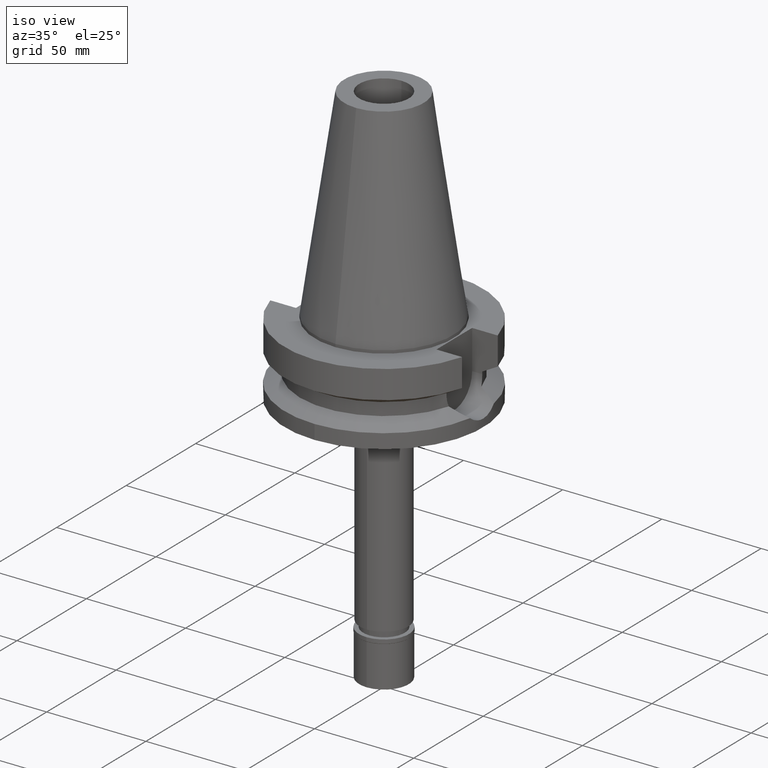
[diagram: clean part render]
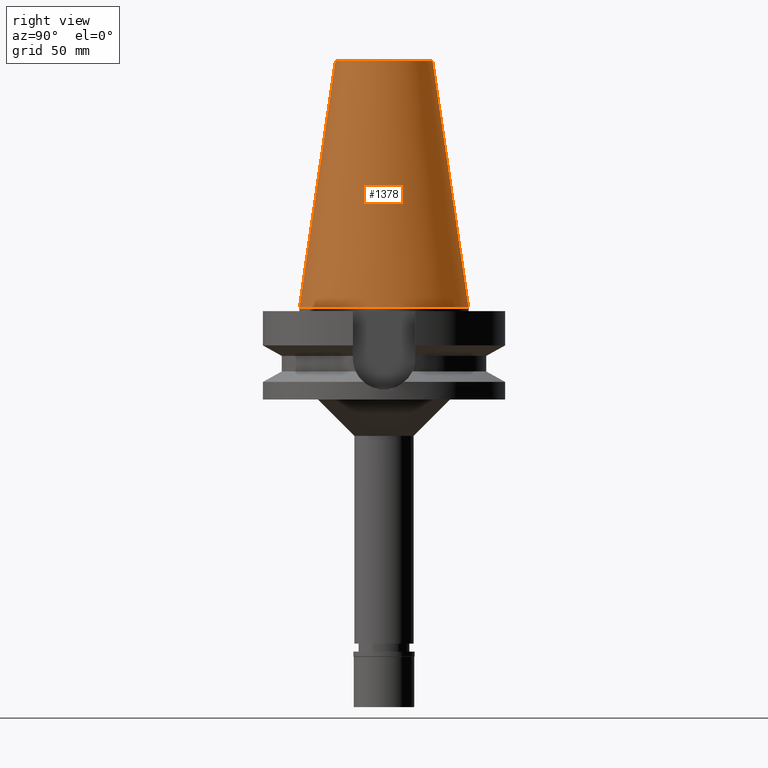
[diagram: tour spotlight — one face highlighted and labeled with its STEP entity id]
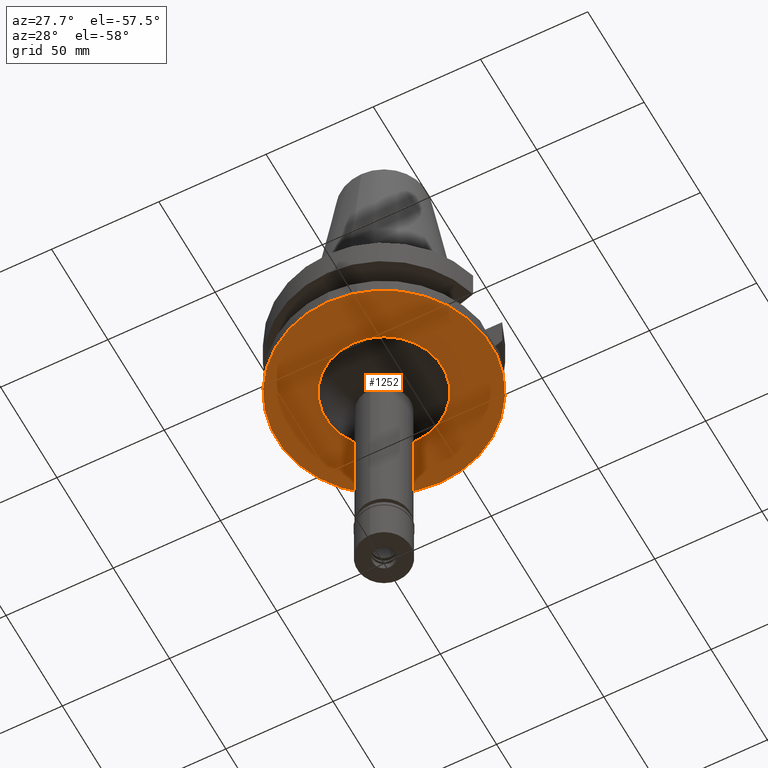
[diagram: tour spotlight — one face highlighted and labeled with its STEP entity id]
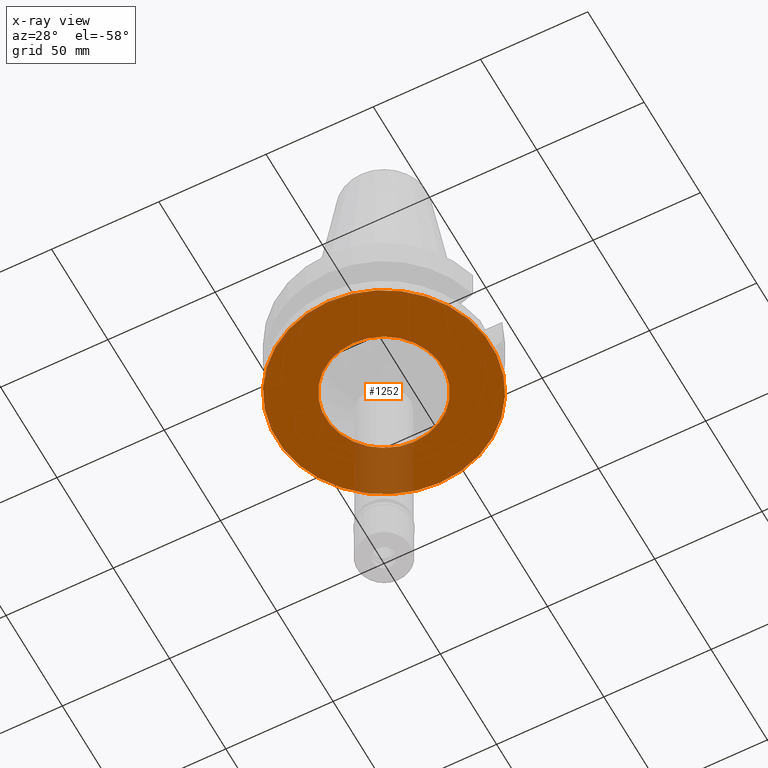
[diagram: x-ray of the same camera — body ghosted, this tour face saturated]
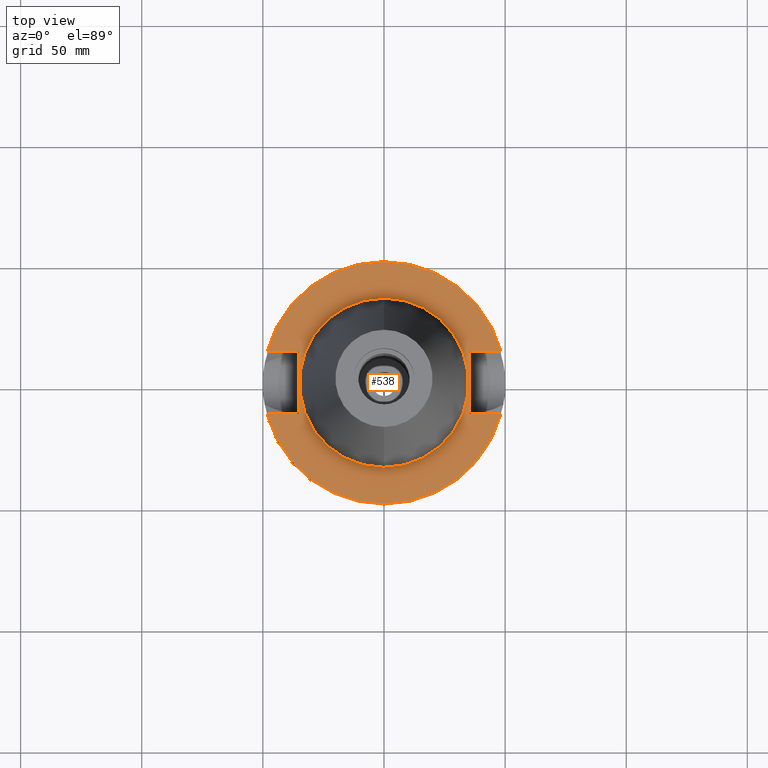
[diagram: tour spotlight — one face highlighted and labeled with its STEP entity id]
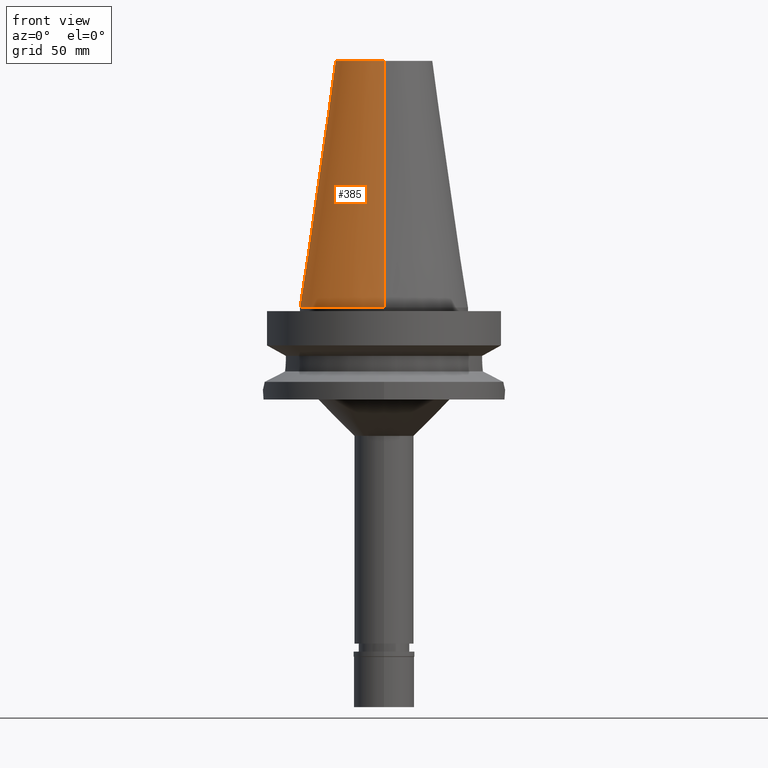
[diagram: tour spotlight — one face highlighted and labeled with its STEP entity id]
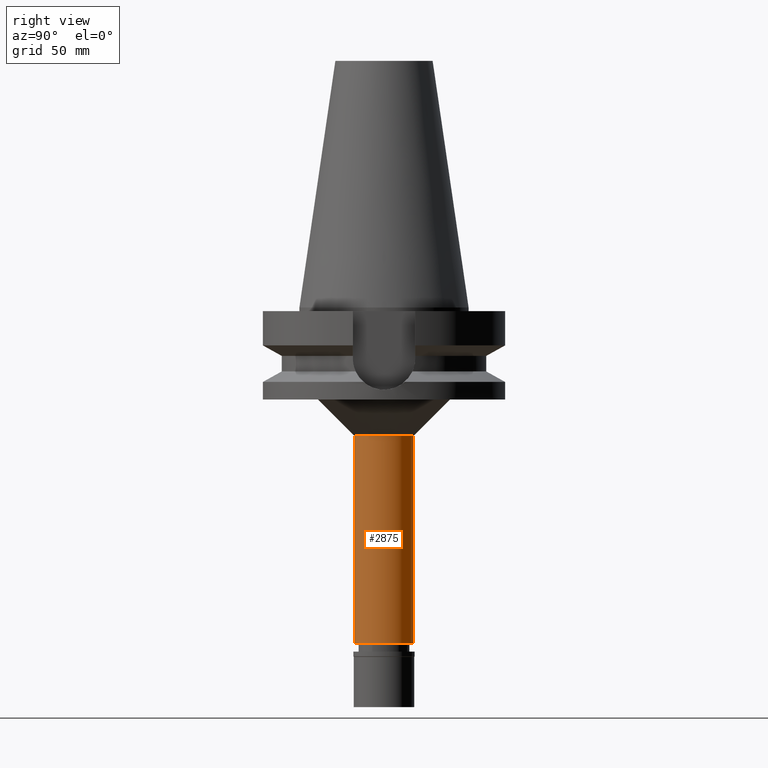
[diagram: tour spotlight — one face highlighted and labeled with its STEP entity id]
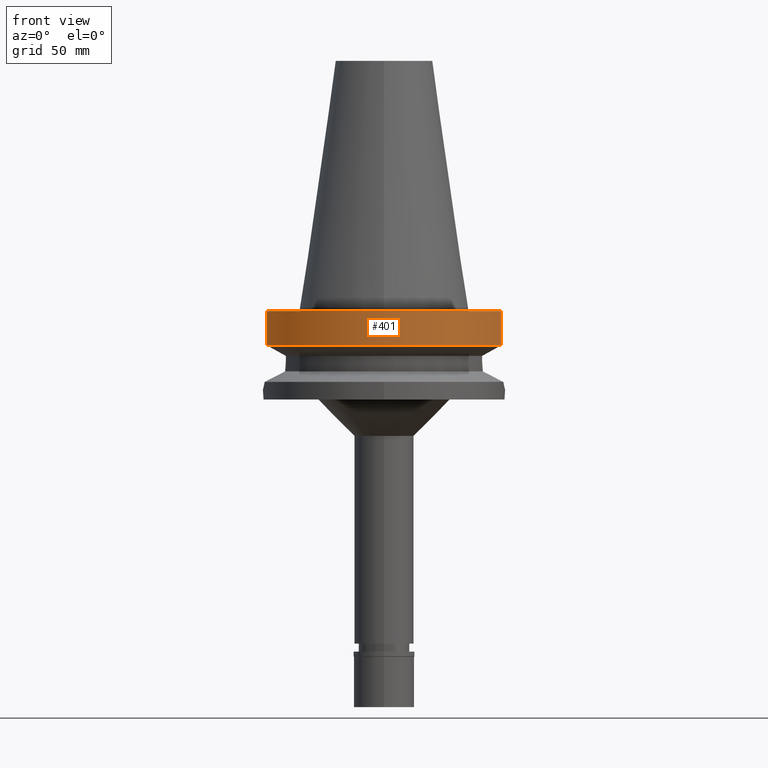
[diagram: tour spotlight — one face highlighted and labeled with its STEP entity id]
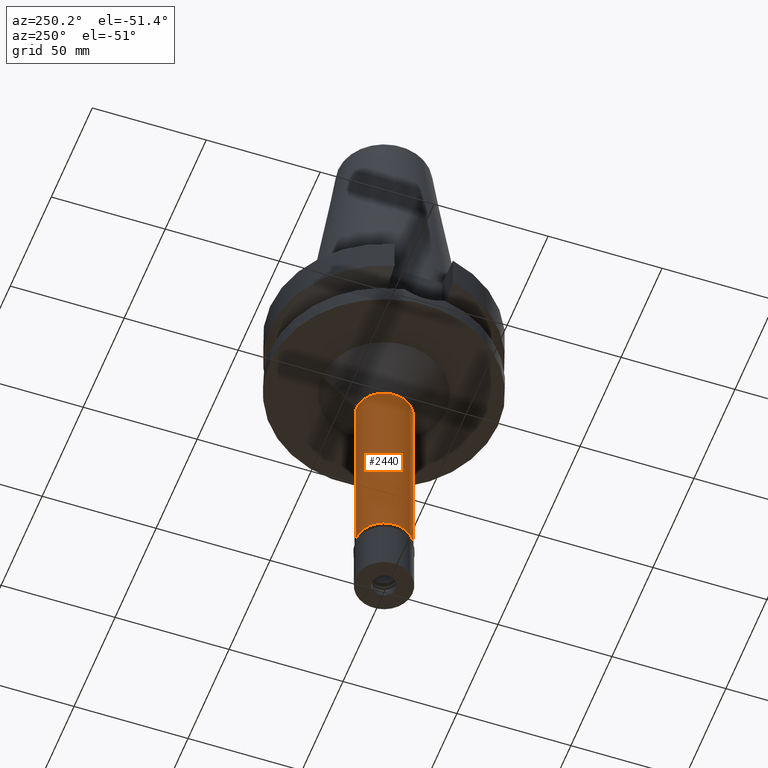
[diagram: tour spotlight — one face highlighted and labeled with its STEP entity id]
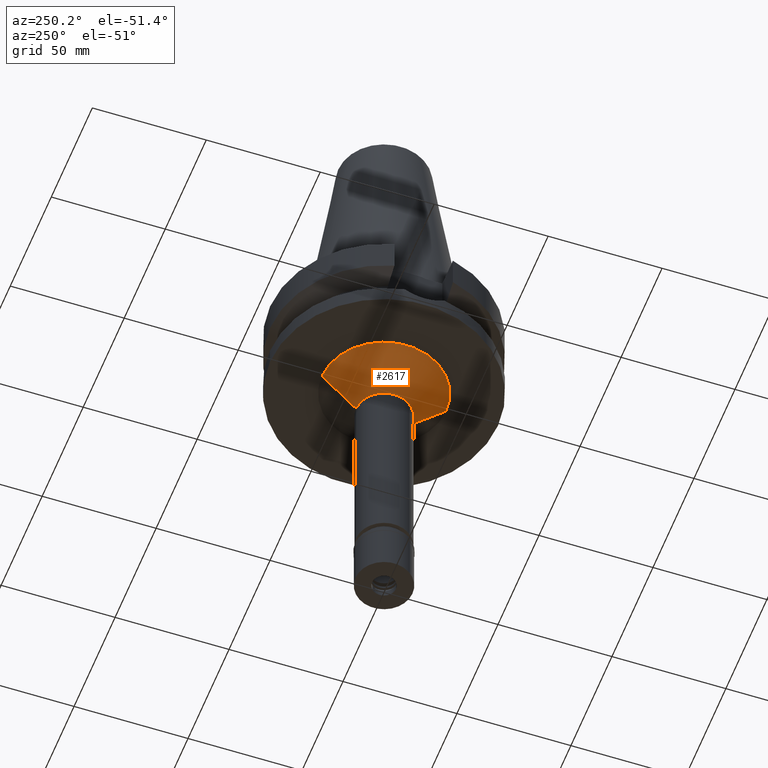
[diagram: tour spotlight — one face highlighted and labeled with its STEP entity id]
A machine part: a face-by-face anatomy tour. The part has 79 B-rep faces; the first image is the clean iso view, then the 8 largest visible faces are spotlighted one at a time (largest first), each with its STEP entity span.

Face 1 — right view, entity #1378. In plain terms, the highlighted conical surface has half-angle 8.297 deg.
Definition (entity closure, byte-faithful):
#58 = VECTOR ( 'NONE', #2322, 1000.000000000000114 ) ;
#188 = ORIENTED_EDGE ( 'NONE', *, *, #452, .F. ) ;
#242 = ORIENTED_EDGE ( 'NONE', *, *, #1646, .T. ) ;
#265 = ORIENTED_EDGE ( 'NONE', *, *, #347, .F. ) ;
#315 = CIRCLE ( 'NONE', #974, 20.07942971896000017 ) ;
#347 = EDGE_CURVE ( 'NONE', #2741, #1170, #1951, .T. ) ;
#452 = EDGE_CURVE ( 'NONE', #2927, #2741, #2982, .T. ) ;
#563 = CARTESIAN_POINT ( 'NONE',  ( 0.0000000000000000000, 1.847992019912999597E-14, 101.7999999999999972 ) ) ;
#568 = DIRECTION ( 'NONE',  ( 0.0000000000000000000, 0.1443043893538948075, -0.9895333461855641000 ) ) ;
#624 = EDGE_CURVE ( 'NONE', #2385, #1170, #2304, .T. ) ;
#653 = CARTESIAN_POINT ( 'NONE',  ( 0.0000000000000000000, 1.847992019912999597E-14, 3.979039320256999774E-13 ) ) ;
#876 = CARTESIAN_POINT ( 'NONE',  ( 0.0000000000000000000, 1.847992019912999597E-14, 50.89999999999999858 ) ) ;
#915 = DIRECTION ( 'NONE',  ( 0.0000000000000000000, 0.0000000000000000000, -1.000000000000000000 ) ) ;
#974 = AXIS2_PLACEMENT_3D ( 'NONE', #563, #2043, #1056 ) ;
#1056 = DIRECTION ( 'NONE',  ( 0.0000000000000000000, 1.000000000000000000, 0.0000000000000000000 ) ) ;
#1079 = CARTESIAN_POINT ( 'NONE',  ( 0.0000000000000000000, 20.07942971896000017, 101.7999999999999972 ) ) ;
#1170 = VERTEX_POINT ( 'NONE', #2719 ) ;
#1294 = CARTESIAN_POINT ( 'NONE',  ( 0.0000000000000000000, -20.07942971896000017, 101.7999999999999972 ) ) ;
#1378 = ADVANCED_FACE ( 'NONE', ( #2822 ), #1835, .T. ) ;
#1431 = VECTOR ( 'NONE', #568, 1000.000000000000114 ) ;
#1646 = EDGE_CURVE ( 'NONE', #2927, #2385, #315, .T. ) ;
#1700 = CARTESIAN_POINT ( 'NONE',  ( 0.0000000000000000000, 34.92499999999999716, 4.547473508865000658E-13 ) ) ;
#1835 = CONICAL_SURFACE ( 'NONE', #2550, 27.50221485948000222, 0.1448099680379422438 ) ;
#1951 = CIRCLE ( 'NONE', #2757, 34.92499999999999716 ) ;
#2037 = DIRECTION ( 'NONE',  ( 0.0000000000000000000, 1.000000000000000000, 0.0000000000000000000 ) ) ;
#2043 = DIRECTION ( 'NONE',  ( 0.0000000000000000000, 0.0000000000000000000, -1.000000000000000000 ) ) ;
#2083 = DIRECTION ( 'NONE',  ( 0.0000000000000000000, -1.000000000000000000, 0.0000000000000000000 ) ) ;
#2148 = CARTESIAN_POINT ( 'NONE',  ( 0.0000000000000000000, 20.07942971896000017, 101.7999999999999972 ) ) ;
#2247 = EDGE_LOOP ( 'NONE', ( #242, #2595, #265, #188 ) ) ;
#2283 = DIRECTION ( 'NONE',  ( 0.0000000000000000000, 0.0000000000000000000, -1.000000000000000000 ) ) ;
#2304 = LINE ( 'NONE', #3011, #58 ) ;
#2322 = DIRECTION ( 'NONE',  ( 0.0000000000000000000, -0.1443043893538948075, -0.9895333461855641000 ) ) ;
#2385 = VERTEX_POINT ( 'NONE', #1294 ) ;
#2550 = AXIS2_PLACEMENT_3D ( 'NONE', #876, #915, #2083 ) ;
#2595 = ORIENTED_EDGE ( 'NONE', *, *, #624, .T. ) ;
#2719 = CARTESIAN_POINT ( 'NONE',  ( 0.0000000000000000000, -34.92499999999999716, 4.547473508865000658E-13 ) ) ;
#2741 = VERTEX_POINT ( 'NONE', #1700 ) ;
#2757 = AXIS2_PLACEMENT_3D ( 'NONE', #653, #2283, #2037 ) ;
#2822 = FACE_OUTER_BOUND ( 'NONE', #2247, .T. ) ;
#2927 = VERTEX_POINT ( 'NONE', #2148 ) ;
#2982 = LINE ( 'NONE', #1079, #1431 ) ;
#3011 = CARTESIAN_POINT ( 'NONE',  ( 0.0000000000000000000, -20.07942971896000017, 101.7999999999999972 ) ) ;

Face 2 — auxiliary view, entity #1252. An x-ray twin of the same camera follows (body ghosted, this face saturated) — the face is partly hidden behind the body. In plain terms, the highlighted planar face has unit normal (0, 0, -1).
Definition (entity closure, byte-faithful):
#167 = CARTESIAN_POINT ( 'NONE',  ( 0.0000000000000000000, 0.0000000000000000000, -38.00000000000000000 ) ) ;
#232 = EDGE_LOOP ( 'NONE', ( #1890, #366 ) ) ;
#286 = FACE_OUTER_BOUND ( 'NONE', #232, .T. ) ;
#321 = EDGE_CURVE ( 'NONE', #2745, #1904, #2240, .T. ) ;
#366 = ORIENTED_EDGE ( 'NONE', *, *, #321, .F. ) ;
#410 = DIRECTION ( 'NONE',  ( 0.0000000000000000000, 0.0000000000000000000, 1.000000000000000000 ) ) ;
#449 = VERTEX_POINT ( 'NONE', #2792 ) ;
#476 = CARTESIAN_POINT ( 'NONE',  ( 0.0000000000000000000, 0.0000000000000000000, -38.00000000000000000 ) ) ;
#560 = ORIENTED_EDGE ( 'NONE', *, *, #1336, .F. ) ;
#632 = CARTESIAN_POINT ( 'NONE',  ( 0.0000000000000000000, 0.0000000000000000000, -38.00000000000000000 ) ) ;
#658 = EDGE_CURVE ( 'NONE', #1904, #2745, #1138, .T. ) ;
#938 = CARTESIAN_POINT ( 'NONE',  ( 0.0000000000000000000, -27.25000000000000000, -38.00000000000000000 ) ) ;
#1138 = CIRCLE ( 'NONE', #2700, 50.00000000000000000 ) ;
#1245 = CARTESIAN_POINT ( 'NONE',  ( 0.0000000000000000000, -50.00000000000000000, -38.00000000000000000 ) ) ;
#1252 = ADVANCED_FACE ( 'NONE', ( #286, #2237 ), #2975, .T. ) ;
#1293 = EDGE_CURVE ( 'NONE', #449, #1935, #3148, .T. ) ;
#1336 = EDGE_CURVE ( 'NONE', #1935, #449, #1466, .T. ) ;
#1421 = EDGE_LOOP ( 'NONE', ( #2544, #560 ) ) ;
#1466 = CIRCLE ( 'NONE', #1878, 27.25000000000000000 ) ;
#1698 = DIRECTION ( 'NONE',  ( 0.0000000000000000000, 0.0000000000000000000, -1.000000000000000000 ) ) ;
#1852 = DIRECTION ( 'NONE',  ( 0.0000000000000000000, 0.0000000000000000000, -1.000000000000000000 ) ) ;
#1878 = AXIS2_PLACEMENT_3D ( 'NONE', #632, #1852, #2846 ) ;
#1879 = DIRECTION ( 'NONE',  ( 0.0000000000000000000, 0.0000000000000000000, -1.000000000000000000 ) ) ;
#1890 = ORIENTED_EDGE ( 'NONE', *, *, #658, .F. ) ;
#1904 = VERTEX_POINT ( 'NONE', #2591 ) ;
#1935 = VERTEX_POINT ( 'NONE', #938 ) ;
#2136 = AXIS2_PLACEMENT_3D ( 'NONE', #167, #1879, #2804 ) ;
#2237 = FACE_BOUND ( 'NONE', #1421, .T. ) ;
#2240 = CIRCLE ( 'NONE', #3054, 50.00000000000000000 ) ;
#2501 = DIRECTION ( 'NONE',  ( 0.0000000000000000000, 1.000000000000000000, 0.0000000000000000000 ) ) ;
#2544 = ORIENTED_EDGE ( 'NONE', *, *, #1293, .F. ) ;
#2546 = AXIS2_PLACEMENT_3D ( 'NONE', #476, #1698, #2673 ) ;
#2591 = CARTESIAN_POINT ( 'NONE',  ( 0.0000000000000000000, 50.00000000000000000, -38.00000000000000000 ) ) ;
#2673 = DIRECTION ( 'NONE',  ( 0.0000000000000000000, -1.000000000000000000, 0.0000000000000000000 ) ) ;
#2700 = AXIS2_PLACEMENT_3D ( 'NONE', #2772, #3062, #2501 ) ;
#2745 = VERTEX_POINT ( 'NONE', #1245 ) ;
#2772 = CARTESIAN_POINT ( 'NONE',  ( 0.0000000000000000000, 2.629194213088999901E-14, -38.00000000000000000 ) ) ;
#2792 = CARTESIAN_POINT ( 'NONE',  ( 0.0000000000000000000, 27.25000000000000000, -38.00000000000000000 ) ) ;
#2804 = DIRECTION ( 'NONE',  ( 0.0000000000000000000, 1.000000000000000000, 0.0000000000000000000 ) ) ;
#2827 = DIRECTION ( 'NONE',  ( 0.0000000000000000000, -1.000000000000000000, 0.0000000000000000000 ) ) ;
#2846 = DIRECTION ( 'NONE',  ( 0.0000000000000000000, -1.000000000000000000, 0.0000000000000000000 ) ) ;
#2975 = PLANE ( 'NONE',  #2546 ) ;
#3054 = AXIS2_PLACEMENT_3D ( 'NONE', #3057, #410, #2827 ) ;
#3057 = CARTESIAN_POINT ( 'NONE',  ( 0.0000000000000000000, 2.629194213088999901E-14, -38.00000000000000000 ) ) ;
#3062 = DIRECTION ( 'NONE',  ( 0.0000000000000000000, 0.0000000000000000000, 1.000000000000000000 ) ) ;
#3148 = CIRCLE ( 'NONE', #2136, 27.25000000000000000 ) ;

Face 3 — top view, entity #538. In plain terms, the highlighted planar face has unit normal (0, 0, -1).
Definition (entity closure, byte-faithful):
#33 = ORIENTED_EDGE ( 'NONE', *, *, #2422, .F. ) ;
#50 = LINE ( 'NONE', #2688, #390 ) ;
#86 = AXIS2_PLACEMENT_3D ( 'NONE', #2590, #927, #225 ) ;
#101 = DIRECTION ( 'NONE',  ( 0.0000000000000000000, -1.000000000000000000, 0.0000000000000000000 ) ) ;
#119 = CARTESIAN_POINT ( 'NONE',  ( -35.39999999999999858, 12.84999999999999964, -1.500000000000000000 ) ) ;
#225 = DIRECTION ( 'NONE',  ( 0.0000000000000000000, 1.000000000000000000, 0.0000000000000000000 ) ) ;
#268 = CARTESIAN_POINT ( 'NONE',  ( 0.0000000000000000000, 2.629194213088999901E-14, -1.500000000000000000 ) ) ;
#279 = VECTOR ( 'NONE', #925, 1000.000000000000000 ) ;
#281 = VECTOR ( 'NONE', #942, 1000.000000000000000 ) ;
#325 = DIRECTION ( 'NONE',  ( 0.0000000000000000000, 0.0000000000000000000, -1.000000000000000000 ) ) ;
#352 = ORIENTED_EDGE ( 'NONE', *, *, #2945, .F. ) ;
#390 = VECTOR ( 'NONE', #2239, 1000.000000000000000 ) ;
#417 = DIRECTION ( 'NONE',  ( 0.0000000000000000000, 1.000000000000000000, 0.0000000000000000000 ) ) ;
#436 = DIRECTION ( 'NONE',  ( -1.000000000000000000, 0.0000000000000000000, 0.0000000000000000000 ) ) ;
#443 = ORIENTED_EDGE ( 'NONE', *, *, #3089, .F. ) ;
#520 = ORIENTED_EDGE ( 'NONE', *, *, #2146, .F. ) ;
#538 = ADVANCED_FACE ( 'NONE', ( #1773, #2509 ), #2760, .F. ) ;
#582 = CARTESIAN_POINT ( 'NONE',  ( 48.32057015392000210, -12.84999999999999964, -1.500000000000000000 ) ) ;
#662 = CARTESIAN_POINT ( 'NONE',  ( -35.39999999999999858, -12.84999999999999964, -1.500000000000000000 ) ) ;
#674 = CARTESIAN_POINT ( 'NONE',  ( -35.39999999999999858, -12.84999999999999964, -1.500000000000000000 ) ) ;
#747 = CIRCLE ( 'NONE', #86, 34.92499999999999716 ) ;
#784 = CIRCLE ( 'NONE', #2201, 34.92499999999999716 ) ;
#830 = CARTESIAN_POINT ( 'NONE',  ( 0.0000000000000000000, 1.206277097159999845E-14, -1.500000000000000000 ) ) ;
#886 = VERTEX_POINT ( 'NONE', #1874 ) ;
#890 = AXIS2_PLACEMENT_3D ( 'NONE', #1854, #1603, #2638 ) ;
#895 = CARTESIAN_POINT ( 'NONE',  ( 35.39999999999999858, 12.84999999999999964, -1.500000000000000000 ) ) ;
#914 = LINE ( 'NONE', #674, #2826 ) ;
#925 = DIRECTION ( 'NONE',  ( 1.000000000000000000, 0.0000000000000000000, 0.0000000000000000000 ) ) ;
#927 = DIRECTION ( 'NONE',  ( 0.0000000000000000000, 0.0000000000000000000, 1.000000000000000000 ) ) ;
#942 = DIRECTION ( 'NONE',  ( 1.000000000000000000, 0.0000000000000000000, 0.0000000000000000000 ) ) ;
#946 = ORIENTED_EDGE ( 'NONE', *, *, #2526, .F. ) ;
#951 = ORIENTED_EDGE ( 'NONE', *, *, #1928, .F. ) ;
#1106 = VERTEX_POINT ( 'NONE', #1941 ) ;
#1183 = CIRCLE ( 'NONE', #890, 50.00000000000000000 ) ;
#1240 = DIRECTION ( 'NONE',  ( 0.0000000000000000000, 0.0000000000000000000, 1.000000000000000000 ) ) ;
#1246 = CIRCLE ( 'NONE', #3033, 50.00000000000000000 ) ;
#1256 = DIRECTION ( 'NONE',  ( 0.0000000000000000000, 0.0000000000000000000, -1.000000000000000000 ) ) ;
#1310 = CARTESIAN_POINT ( 'NONE',  ( 35.39999999999999858, -12.84999999999999964, -1.500000000000000000 ) ) ;
#1531 = CARTESIAN_POINT ( 'NONE',  ( -35.39999999999999858, -12.84999999999999964, -1.500000000000000000 ) ) ;
#1564 = EDGE_LOOP ( 'NONE', ( #946, #520 ) ) ;
#1583 = CARTESIAN_POINT ( 'NONE',  ( 0.0000000000000000000, -34.92499999999999716, -1.500000000000000000 ) ) ;
#1603 = DIRECTION ( 'NONE',  ( 0.0000000000000000000, 0.0000000000000000000, -1.000000000000000000 ) ) ;
#1629 = DIRECTION ( 'NONE',  ( -1.000000000000000000, 0.0000000000000000000, 0.0000000000000000000 ) ) ;
#1636 = AXIS2_PLACEMENT_3D ( 'NONE', #830, #325, #2806 ) ;
#1650 = VERTEX_POINT ( 'NONE', #119 ) ;
#1672 = VERTEX_POINT ( 'NONE', #1531 ) ;
#1754 = VERTEX_POINT ( 'NONE', #582 ) ;
#1767 = CARTESIAN_POINT ( 'NONE',  ( -48.32057015392000210, -12.84999999999999964, -1.500000000000000000 ) ) ;
#1773 = FACE_OUTER_BOUND ( 'NONE', #2898, .T. ) ;
#1813 = VERTEX_POINT ( 'NONE', #1583 ) ;
#1854 = CARTESIAN_POINT ( 'NONE',  ( 0.0000000000000000000, 2.629194213088999901E-14, -1.500000000000000000 ) ) ;
#1874 = CARTESIAN_POINT ( 'NONE',  ( 0.0000000000000000000, 34.92499999999999716, -1.500000000000000000 ) ) ;
#1880 = CARTESIAN_POINT ( 'NONE',  ( 35.39999999999999858, -12.84999999999999964, -1.500000000000000000 ) ) ;
#1906 = LINE ( 'NONE', #2123, #279 ) ;
#1928 = EDGE_CURVE ( 'NONE', #1106, #2636, #1183, .T. ) ;
#1941 = CARTESIAN_POINT ( 'NONE',  ( -48.32057015392000210, 12.84999999999999964, -1.500000000000000000 ) ) ;
#1982 = ORIENTED_EDGE ( 'NONE', *, *, #2616, .T. ) ;
#2017 = VECTOR ( 'NONE', #1629, 1000.000000000000000 ) ;
#2025 = VERTEX_POINT ( 'NONE', #895 ) ;
#2041 = ORIENTED_EDGE ( 'NONE', *, *, #2460, .F. ) ;
#2047 = CARTESIAN_POINT ( 'NONE',  ( -35.39999999999999858, 12.84999999999999964, -1.500000000000000000 ) ) ;
#2111 = LINE ( 'NONE', #662, #2017 ) ;
#2121 = VECTOR ( 'NONE', #436, 1000.000000000000000 ) ;
#2123 = CARTESIAN_POINT ( 'NONE',  ( 35.39999999999999858, 12.84999999999999964, -1.500000000000000000 ) ) ;
#2146 = EDGE_CURVE ( 'NONE', #1813, #886, #784, .T. ) ;
#2201 = AXIS2_PLACEMENT_3D ( 'NONE', #268, #1240, #101 ) ;
#2239 = DIRECTION ( 'NONE',  ( 0.0000000000000000000, -1.000000000000000000, 0.0000000000000000000 ) ) ;
#2280 = VERTEX_POINT ( 'NONE', #1767 ) ;
#2411 = VERTEX_POINT ( 'NONE', #1310 ) ;
#2422 = EDGE_CURVE ( 'NONE', #1650, #1106, #2527, .T. ) ;
#2460 = EDGE_CURVE ( 'NONE', #2411, #1754, #2835, .T. ) ;
#2488 = CARTESIAN_POINT ( 'NONE',  ( 48.32057015392000210, 12.84999999999999964, -1.500000000000000000 ) ) ;
#2509 = FACE_BOUND ( 'NONE', #1564, .T. ) ;
#2526 = EDGE_CURVE ( 'NONE', #886, #1813, #747, .T. ) ;
#2527 = LINE ( 'NONE', #2047, #2121 ) ;
#2590 = CARTESIAN_POINT ( 'NONE',  ( 0.0000000000000000000, 2.629194213088999901E-14, -1.500000000000000000 ) ) ;
#2616 = EDGE_CURVE ( 'NONE', #1672, #2280, #2111, .T. ) ;
#2631 = EDGE_CURVE ( 'NONE', #2025, #2411, #50, .T. ) ;
#2636 = VERTEX_POINT ( 'NONE', #2488 ) ;
#2638 = DIRECTION ( 'NONE',  ( 0.0000000000000000000, 1.000000000000000000, 0.0000000000000000000 ) ) ;
#2670 = CARTESIAN_POINT ( 'NONE',  ( 0.0000000000000000000, 2.629194213088999901E-14, -1.500000000000000000 ) ) ;
#2688 = CARTESIAN_POINT ( 'NONE',  ( 35.39999999999999858, 12.84999999999999964, -1.500000000000000000 ) ) ;
#2760 = PLANE ( 'NONE',  #1636 ) ;
#2784 = ORIENTED_EDGE ( 'NONE', *, *, #2944, .T. ) ;
#2806 = DIRECTION ( 'NONE',  ( 0.0000000000000000000, -1.000000000000000000, 0.0000000000000000000 ) ) ;
#2826 = VECTOR ( 'NONE', #417, 1000.000000000000000 ) ;
#2835 = LINE ( 'NONE', #1880, #281 ) ;
#2898 = EDGE_LOOP ( 'NONE', ( #1982, #443, #2041, #2972, #2784, #951, #33, #352 ) ) ;
#2899 = DIRECTION ( 'NONE',  ( 0.0000000000000000000, -1.000000000000000000, 0.0000000000000000000 ) ) ;
#2944 = EDGE_CURVE ( 'NONE', #2025, #2636, #1906, .T. ) ;
#2945 = EDGE_CURVE ( 'NONE', #1672, #1650, #914, .T. ) ;
#2972 = ORIENTED_EDGE ( 'NONE', *, *, #2631, .F. ) ;
#3033 = AXIS2_PLACEMENT_3D ( 'NONE', #2670, #1256, #2899 ) ;
#3089 = EDGE_CURVE ( 'NONE', #1754, #2280, #1246, .T. ) ;

Face 4 — front view, entity #385. In plain terms, the highlighted conical surface has half-angle 8.297 deg.
Definition (entity closure, byte-faithful):
#58 = VECTOR ( 'NONE', #2322, 1000.000000000000114 ) ;
#89 = CARTESIAN_POINT ( 'NONE',  ( 0.0000000000000000000, 1.847992019912999597E-14, 3.979039320256999774E-13 ) ) ;
#298 = EDGE_CURVE ( 'NONE', #2385, #2927, #411, .T. ) ;
#349 = FACE_OUTER_BOUND ( 'NONE', #1049, .T. ) ;
#385 = ADVANCED_FACE ( 'NONE', ( #349 ), #1229, .T. ) ;
#411 = CIRCLE ( 'NONE', #668, 20.07942971896000017 ) ;
#452 = EDGE_CURVE ( 'NONE', #2927, #2741, #2982, .T. ) ;
#568 = DIRECTION ( 'NONE',  ( 0.0000000000000000000, 0.1443043893538948075, -0.9895333461855641000 ) ) ;
#624 = EDGE_CURVE ( 'NONE', #2385, #1170, #2304, .T. ) ;
#668 = AXIS2_PLACEMENT_3D ( 'NONE', #1066, #1829, #1605 ) ;
#1049 = EDGE_LOOP ( 'NONE', ( #1278, #2175, #2892, #2970 ) ) ;
#1060 = DIRECTION ( 'NONE',  ( 0.0000000000000000000, 0.0000000000000000000, -1.000000000000000000 ) ) ;
#1066 = CARTESIAN_POINT ( 'NONE',  ( 0.0000000000000000000, 1.847992019912999597E-14, 101.7999999999999972 ) ) ;
#1079 = CARTESIAN_POINT ( 'NONE',  ( 0.0000000000000000000, 20.07942971896000017, 101.7999999999999972 ) ) ;
#1084 = DIRECTION ( 'NONE',  ( 0.0000000000000000000, 0.0000000000000000000, -1.000000000000000000 ) ) ;
#1170 = VERTEX_POINT ( 'NONE', #2719 ) ;
#1229 = CONICAL_SURFACE ( 'NONE', #2605, 27.50221485948000222, 0.1448099680379422438 ) ;
#1278 = ORIENTED_EDGE ( 'NONE', *, *, #2400, .F. ) ;
#1294 = CARTESIAN_POINT ( 'NONE',  ( 0.0000000000000000000, -20.07942971896000017, 101.7999999999999972 ) ) ;
#1317 = CARTESIAN_POINT ( 'NONE',  ( 0.0000000000000000000, 1.847992019912999597E-14, 50.89999999999999858 ) ) ;
#1431 = VECTOR ( 'NONE', #568, 1000.000000000000114 ) ;
#1565 = CIRCLE ( 'NONE', #2473, 34.92499999999999716 ) ;
#1605 = DIRECTION ( 'NONE',  ( 0.0000000000000000000, -1.000000000000000000, 0.0000000000000000000 ) ) ;
#1700 = CARTESIAN_POINT ( 'NONE',  ( 0.0000000000000000000, 34.92499999999999716, 4.547473508865000658E-13 ) ) ;
#1791 = DIRECTION ( 'NONE',  ( 0.0000000000000000000, -1.000000000000000000, 0.0000000000000000000 ) ) ;
#1829 = DIRECTION ( 'NONE',  ( 0.0000000000000000000, 0.0000000000000000000, -1.000000000000000000 ) ) ;
#2054 = DIRECTION ( 'NONE',  ( 0.0000000000000000000, -1.000000000000000000, 0.0000000000000000000 ) ) ;
#2148 = CARTESIAN_POINT ( 'NONE',  ( 0.0000000000000000000, 20.07942971896000017, 101.7999999999999972 ) ) ;
#2175 = ORIENTED_EDGE ( 'NONE', *, *, #624, .F. ) ;
#2304 = LINE ( 'NONE', #3011, #58 ) ;
#2322 = DIRECTION ( 'NONE',  ( 0.0000000000000000000, -0.1443043893538948075, -0.9895333461855641000 ) ) ;
#2385 = VERTEX_POINT ( 'NONE', #1294 ) ;
#2400 = EDGE_CURVE ( 'NONE', #1170, #2741, #1565, .T. ) ;
#2473 = AXIS2_PLACEMENT_3D ( 'NONE', #89, #1060, #1791 ) ;
#2605 = AXIS2_PLACEMENT_3D ( 'NONE', #1317, #1084, #2054 ) ;
#2719 = CARTESIAN_POINT ( 'NONE',  ( 0.0000000000000000000, -34.92499999999999716, 4.547473508865000658E-13 ) ) ;
#2741 = VERTEX_POINT ( 'NONE', #1700 ) ;
#2892 = ORIENTED_EDGE ( 'NONE', *, *, #298, .T. ) ;
#2927 = VERTEX_POINT ( 'NONE', #2148 ) ;
#2970 = ORIENTED_EDGE ( 'NONE', *, *, #452, .T. ) ;
#2982 = LINE ( 'NONE', #1079, #1431 ) ;
#3011 = CARTESIAN_POINT ( 'NONE',  ( 0.0000000000000000000, -20.07942971896000017, 101.7999999999999972 ) ) ;

Face 5 — right view, entity #2875. In plain terms, the highlighted cylindrical surface (edge-blend (fillet) strip) has radius 12.25 mm, axis along (0, 0, -1).
Definition (entity closure, byte-faithful):
#27 = DIRECTION ( 'NONE',  ( 0.0000000000000000000, 0.0000000000000000000, -1.000000000000000000 ) ) ;
#77 = ORIENTED_EDGE ( 'NONE', *, *, #3101, .T. ) ;
#161 = VECTOR ( 'NONE', #1038, 1000.000000000000000 ) ;
#183 = DIRECTION ( 'NONE',  ( 0.0000000000000000000, -1.000000000000000000, 0.0000000000000000000 ) ) ;
#206 = CARTESIAN_POINT ( 'NONE',  ( 0.0000000000000000000, 12.25000000000000000, -53.00000000000000000 ) ) ;
#217 = DIRECTION ( 'NONE',  ( 0.0000000000000000000, 0.0000000000000000000, -1.000000000000000000 ) ) ;
#271 = CARTESIAN_POINT ( 'NONE',  ( 0.0000000000000000000, 12.25000000000000000, -53.00000000000000000 ) ) ;
#424 = AXIS2_PLACEMENT_3D ( 'NONE', #1207, #2177, #3118 ) ;
#556 = ORIENTED_EDGE ( 'NONE', *, *, #2116, .T. ) ;
#571 = ORIENTED_EDGE ( 'NONE', *, *, #837, .F. ) ;
#604 = CARTESIAN_POINT ( 'NONE',  ( 0.0000000000000000000, 12.25000000000000000, -138.8000000000000114 ) ) ;
#646 = DIRECTION ( 'NONE',  ( 0.0000000000000000000, 0.0000000000000000000, -1.000000000000000000 ) ) ;
#691 = CIRCLE ( 'NONE', #2470, 12.25000000000000000 ) ;
#702 = FACE_OUTER_BOUND ( 'NONE', #2159, .T. ) ;
#767 = VECTOR ( 'NONE', #217, 1000.000000000000000 ) ;
#837 = EDGE_CURVE ( 'NONE', #2618, #1972, #2386, .T. ) ;
#891 = CARTESIAN_POINT ( 'NONE',  ( 0.0000000000000000000, 2.629194213088999901E-14, 114.6899999999999977 ) ) ;
#1012 = VERTEX_POINT ( 'NONE', #1916 ) ;
#1038 = DIRECTION ( 'NONE',  ( 0.0000000000000000000, 0.0000000000000000000, -1.000000000000000000 ) ) ;
#1093 = CIRCLE ( 'NONE', #424, 12.25000000000000000 ) ;
#1207 = CARTESIAN_POINT ( 'NONE',  ( 0.0000000000000000000, 2.629194213088999901E-14, -138.8000000000000114 ) ) ;
#1214 = EDGE_CURVE ( 'NONE', #1012, #2249, #1272, .T. ) ;
#1272 = LINE ( 'NONE', #1711, #161 ) ;
#1471 = CARTESIAN_POINT ( 'NONE',  ( 0.0000000000000000000, 0.0000000000000000000, -53.00000000000000000 ) ) ;
#1701 = AXIS2_PLACEMENT_3D ( 'NONE', #891, #646, #183 ) ;
#1711 = CARTESIAN_POINT ( 'NONE',  ( 0.0000000000000000000, -12.25000000000000000, -53.00000000000000000 ) ) ;
#1864 = CYLINDRICAL_SURFACE ( 'NONE', #1701, 12.25000000000000000 ) ;
#1916 = CARTESIAN_POINT ( 'NONE',  ( 0.0000000000000000000, -12.25000000000000000, -53.00000000000000000 ) ) ;
#1972 = VERTEX_POINT ( 'NONE', #604 ) ;
#2116 = EDGE_CURVE ( 'NONE', #2249, #1972, #1093, .T. ) ;
#2159 = EDGE_LOOP ( 'NONE', ( #77, #3114, #556, #571 ) ) ;
#2177 = DIRECTION ( 'NONE',  ( 0.0000000000000000000, 0.0000000000000000000, 1.000000000000000000 ) ) ;
#2249 = VERTEX_POINT ( 'NONE', #2749 ) ;
#2386 = LINE ( 'NONE', #206, #767 ) ;
#2415 = DIRECTION ( 'NONE',  ( 0.0000000000000000000, 1.000000000000000000, 0.0000000000000000000 ) ) ;
#2470 = AXIS2_PLACEMENT_3D ( 'NONE', #1471, #27, #2415 ) ;
#2618 = VERTEX_POINT ( 'NONE', #271 ) ;
#2749 = CARTESIAN_POINT ( 'NONE',  ( 0.0000000000000000000, -12.25000000000000000, -138.8000000000000114 ) ) ;
#2875 = ADVANCED_FACE ( 'NONE', ( #702 ), #1864, .T. ) ;
#3101 = EDGE_CURVE ( 'NONE', #2618, #1012, #691, .T. ) ;
#3114 = ORIENTED_EDGE ( 'NONE', *, *, #1214, .T. ) ;
#3118 = DIRECTION ( 'NONE',  ( 0.0000000000000000000, -1.000000000000000000, 0.0000000000000000000 ) ) ;

Face 6 — front view, entity #401. In plain terms, the highlighted cylindrical surface (partial cylindrical patch) has radius 50 mm, axis along (0, 0, -1).
Definition (entity closure, byte-faithful):
#105 = AXIS2_PLACEMENT_3D ( 'NONE', #1934, #1954, #2664 ) ;
#236 = LINE ( 'NONE', #550, #1717 ) ;
#239 = CARTESIAN_POINT ( 'NONE',  ( 48.32057015392000210, -12.84999999999999964, -15.66269223573000069 ) ) ;
#401 = ADVANCED_FACE ( 'NONE', ( #851 ), #1816, .T. ) ;
#550 = CARTESIAN_POINT ( 'NONE',  ( 48.32057015392000210, -12.84999999999999964, -1.500000000000000000 ) ) ;
#577 = AXIS2_PLACEMENT_3D ( 'NONE', #607, #2547, #2089 ) ;
#582 = CARTESIAN_POINT ( 'NONE',  ( 48.32057015392000210, -12.84999999999999964, -1.500000000000000000 ) ) ;
#607 = CARTESIAN_POINT ( 'NONE',  ( 0.0000000000000000000, 2.629194213088999901E-14, 114.6899999999999977 ) ) ;
#667 = ORIENTED_EDGE ( 'NONE', *, *, #3089, .T. ) ;
#733 = EDGE_CURVE ( 'NONE', #1102, #2280, #1532, .T. ) ;
#758 = CARTESIAN_POINT ( 'NONE',  ( -48.32056912814000071, -12.85000385727999905, -15.66265768250999990 ) ) ;
#851 = FACE_OUTER_BOUND ( 'NONE', #2295, .T. ) ;
#979 = EDGE_CURVE ( 'NONE', #1102, #2707, #2433, .T. ) ;
#1102 = VERTEX_POINT ( 'NONE', #758 ) ;
#1174 = EDGE_CURVE ( 'NONE', #1754, #2707, #236, .T. ) ;
#1187 = ORIENTED_EDGE ( 'NONE', *, *, #1174, .F. ) ;
#1246 = CIRCLE ( 'NONE', #3033, 50.00000000000000000 ) ;
#1256 = DIRECTION ( 'NONE',  ( 0.0000000000000000000, 0.0000000000000000000, -1.000000000000000000 ) ) ;
#1532 = LINE ( 'NONE', #2789, #1680 ) ;
#1680 = VECTOR ( 'NONE', #2335, 1000.000000000000114 ) ;
#1717 = VECTOR ( 'NONE', #2149, 999.9999999999998863 ) ;
#1754 = VERTEX_POINT ( 'NONE', #582 ) ;
#1767 = CARTESIAN_POINT ( 'NONE',  ( -48.32057015392000210, -12.84999999999999964, -1.500000000000000000 ) ) ;
#1816 = CYLINDRICAL_SURFACE ( 'NONE', #577, 50.00000000000000000 ) ;
#1934 = CARTESIAN_POINT ( 'NONE',  ( 0.0000000000000000000, 1.006319759053999930E-14, -15.66269223573000069 ) ) ;
#1954 = DIRECTION ( 'NONE',  ( 0.0000000000000000000, 0.0000000000000000000, 1.000000000000000000 ) ) ;
#2089 = DIRECTION ( 'NONE',  ( 0.0000000000000000000, -1.000000000000000000, 0.0000000000000000000 ) ) ;
#2149 = DIRECTION ( 'NONE',  ( -7.245235590871711235E-08, -2.724464493457891478E-07, -0.9999999999999603650 ) ) ;
#2280 = VERTEX_POINT ( 'NONE', #1767 ) ;
#2295 = EDGE_LOOP ( 'NONE', ( #3060, #2983, #1187, #667 ) ) ;
#2335 = DIRECTION ( 'NONE',  ( -7.242826062940713647E-08, 2.723558434545890236E-07, 0.9999999999999603650 ) ) ;
#2433 = CIRCLE ( 'NONE', #105, 50.00000000000000000 ) ;
#2547 = DIRECTION ( 'NONE',  ( 0.0000000000000000000, 0.0000000000000000000, -1.000000000000000000 ) ) ;
#2664 = DIRECTION ( 'NONE',  ( 0.0000000000000000000, -1.000000000000000000, 0.0000000000000000000 ) ) ;
#2670 = CARTESIAN_POINT ( 'NONE',  ( 0.0000000000000000000, 2.629194213088999901E-14, -1.500000000000000000 ) ) ;
#2707 = VERTEX_POINT ( 'NONE', #239 ) ;
#2789 = CARTESIAN_POINT ( 'NONE',  ( -48.32056912814000071, -12.85000385727999905, -15.66265768250999990 ) ) ;
#2899 = DIRECTION ( 'NONE',  ( 0.0000000000000000000, -1.000000000000000000, 0.0000000000000000000 ) ) ;
#2983 = ORIENTED_EDGE ( 'NONE', *, *, #979, .T. ) ;
#3033 = AXIS2_PLACEMENT_3D ( 'NONE', #2670, #1256, #2899 ) ;
#3060 = ORIENTED_EDGE ( 'NONE', *, *, #733, .F. ) ;
#3089 = EDGE_CURVE ( 'NONE', #1754, #2280, #1246, .T. ) ;

Face 7 — auxiliary view, entity #2440. In plain terms, the highlighted cylindrical surface (edge-blend (fillet) strip) has radius 12.25 mm, axis along (0, 0, -1).
Definition (entity closure, byte-faithful):
#26 = ORIENTED_EDGE ( 'NONE', *, *, #837, .T. ) ;
#142 = CIRCLE ( 'NONE', #545, 12.25000000000000000 ) ;
#161 = VECTOR ( 'NONE', #1038, 1000.000000000000000 ) ;
#173 = EDGE_CURVE ( 'NONE', #1972, #2249, #142, .T. ) ;
#185 = CARTESIAN_POINT ( 'NONE',  ( 0.0000000000000000000, 2.629194213088999901E-14, 114.6899999999999977 ) ) ;
#206 = CARTESIAN_POINT ( 'NONE',  ( 0.0000000000000000000, 12.25000000000000000, -53.00000000000000000 ) ) ;
#217 = DIRECTION ( 'NONE',  ( 0.0000000000000000000, 0.0000000000000000000, -1.000000000000000000 ) ) ;
#271 = CARTESIAN_POINT ( 'NONE',  ( 0.0000000000000000000, 12.25000000000000000, -53.00000000000000000 ) ) ;
#531 = DIRECTION ( 'NONE',  ( 0.0000000000000000000, 0.0000000000000000000, -1.000000000000000000 ) ) ;
#544 = AXIS2_PLACEMENT_3D ( 'NONE', #1261, #531, #2657 ) ;
#545 = AXIS2_PLACEMENT_3D ( 'NONE', #1968, #555, #1299 ) ;
#555 = DIRECTION ( 'NONE',  ( 0.0000000000000000000, 0.0000000000000000000, 1.000000000000000000 ) ) ;
#599 = AXIS2_PLACEMENT_3D ( 'NONE', #185, #2138, #2380 ) ;
#604 = CARTESIAN_POINT ( 'NONE',  ( 0.0000000000000000000, 12.25000000000000000, -138.8000000000000114 ) ) ;
#676 = CYLINDRICAL_SURFACE ( 'NONE', #599, 12.25000000000000000 ) ;
#767 = VECTOR ( 'NONE', #217, 1000.000000000000000 ) ;
#837 = EDGE_CURVE ( 'NONE', #2618, #1972, #2386, .T. ) ;
#1012 = VERTEX_POINT ( 'NONE', #1916 ) ;
#1038 = DIRECTION ( 'NONE',  ( 0.0000000000000000000, 0.0000000000000000000, -1.000000000000000000 ) ) ;
#1150 = EDGE_LOOP ( 'NONE', ( #1414, #1512, #1411, #26 ) ) ;
#1214 = EDGE_CURVE ( 'NONE', #1012, #2249, #1272, .T. ) ;
#1261 = CARTESIAN_POINT ( 'NONE',  ( 0.0000000000000000000, 0.0000000000000000000, -53.00000000000000000 ) ) ;
#1272 = LINE ( 'NONE', #1711, #161 ) ;
#1299 = DIRECTION ( 'NONE',  ( 0.0000000000000000000, 1.000000000000000000, 0.0000000000000000000 ) ) ;
#1411 = ORIENTED_EDGE ( 'NONE', *, *, #2629, .T. ) ;
#1414 = ORIENTED_EDGE ( 'NONE', *, *, #173, .T. ) ;
#1512 = ORIENTED_EDGE ( 'NONE', *, *, #1214, .F. ) ;
#1711 = CARTESIAN_POINT ( 'NONE',  ( 0.0000000000000000000, -12.25000000000000000, -53.00000000000000000 ) ) ;
#1755 = CIRCLE ( 'NONE', #544, 12.25000000000000000 ) ;
#1916 = CARTESIAN_POINT ( 'NONE',  ( 0.0000000000000000000, -12.25000000000000000, -53.00000000000000000 ) ) ;
#1968 = CARTESIAN_POINT ( 'NONE',  ( 0.0000000000000000000, 2.629194213088999901E-14, -138.8000000000000114 ) ) ;
#1972 = VERTEX_POINT ( 'NONE', #604 ) ;
#2138 = DIRECTION ( 'NONE',  ( 0.0000000000000000000, 0.0000000000000000000, -1.000000000000000000 ) ) ;
#2249 = VERTEX_POINT ( 'NONE', #2749 ) ;
#2380 = DIRECTION ( 'NONE',  ( 0.0000000000000000000, -1.000000000000000000, 0.0000000000000000000 ) ) ;
#2386 = LINE ( 'NONE', #206, #767 ) ;
#2440 = ADVANCED_FACE ( 'NONE', ( #2601 ), #676, .T. ) ;
#2601 = FACE_OUTER_BOUND ( 'NONE', #1150, .T. ) ;
#2618 = VERTEX_POINT ( 'NONE', #271 ) ;
#2629 = EDGE_CURVE ( 'NONE', #1012, #2618, #1755, .T. ) ;
#2657 = DIRECTION ( 'NONE',  ( 0.0000000000000000000, -1.000000000000000000, 0.0000000000000000000 ) ) ;
#2749 = CARTESIAN_POINT ( 'NONE',  ( 0.0000000000000000000, -12.25000000000000000, -138.8000000000000114 ) ) ;

Face 8 — auxiliary view, entity #2617. In plain terms, the highlighted conical surface has half-angle 45 deg.
Definition (entity closure, byte-faithful):
#104 = CARTESIAN_POINT ( 'NONE',  ( 0.0000000000000000000, -27.25000000000000000, -38.00000000000000000 ) ) ;
#271 = CARTESIAN_POINT ( 'NONE',  ( 0.0000000000000000000, 12.25000000000000000, -53.00000000000000000 ) ) ;
#359 = LINE ( 'NONE', #1311, #1280 ) ;
#449 = VERTEX_POINT ( 'NONE', #2792 ) ;
#531 = DIRECTION ( 'NONE',  ( 0.0000000000000000000, 0.0000000000000000000, -1.000000000000000000 ) ) ;
#540 = EDGE_CURVE ( 'NONE', #449, #2618, #359, .T. ) ;
#544 = AXIS2_PLACEMENT_3D ( 'NONE', #1261, #531, #2657 ) ;
#632 = CARTESIAN_POINT ( 'NONE',  ( 0.0000000000000000000, 0.0000000000000000000, -38.00000000000000000 ) ) ;
#730 = ORIENTED_EDGE ( 'NONE', *, *, #2843, .F. ) ;
#846 = DIRECTION ( 'NONE',  ( 0.0000000000000000000, -0.7071067811865474617, -0.7071067811865474617 ) ) ;
#938 = CARTESIAN_POINT ( 'NONE',  ( 0.0000000000000000000, -27.25000000000000000, -38.00000000000000000 ) ) ;
#973 = CARTESIAN_POINT ( 'NONE',  ( 0.0000000000000000000, 0.0000000000000000000, -45.50000000000000000 ) ) ;
#1012 = VERTEX_POINT ( 'NONE', #1916 ) ;
#1226 = DIRECTION ( 'NONE',  ( 0.0000000000000000000, 0.0000000000000000000, 1.000000000000000000 ) ) ;
#1261 = CARTESIAN_POINT ( 'NONE',  ( 0.0000000000000000000, 0.0000000000000000000, -53.00000000000000000 ) ) ;
#1280 = VECTOR ( 'NONE', #846, 1000.000000000000114 ) ;
#1291 = DIRECTION ( 'NONE',  ( 0.0000000000000000000, 0.7071067811865474617, -0.7071067811865474617 ) ) ;
#1300 = ORIENTED_EDGE ( 'NONE', *, *, #540, .T. ) ;
#1311 = CARTESIAN_POINT ( 'NONE',  ( 0.0000000000000000000, 27.25000000000000000, -38.00000000000000000 ) ) ;
#1336 = EDGE_CURVE ( 'NONE', #1935, #449, #1466, .T. ) ;
#1359 = AXIS2_PLACEMENT_3D ( 'NONE', #973, #1226, #2675 ) ;
#1466 = CIRCLE ( 'NONE', #1878, 27.25000000000000000 ) ;
#1755 = CIRCLE ( 'NONE', #544, 12.25000000000000000 ) ;
#1852 = DIRECTION ( 'NONE',  ( 0.0000000000000000000, 0.0000000000000000000, -1.000000000000000000 ) ) ;
#1861 = VECTOR ( 'NONE', #1291, 1000.000000000000114 ) ;
#1878 = AXIS2_PLACEMENT_3D ( 'NONE', #632, #1852, #2846 ) ;
#1885 = EDGE_LOOP ( 'NONE', ( #2474, #730, #2038, #1300 ) ) ;
#1916 = CARTESIAN_POINT ( 'NONE',  ( 0.0000000000000000000, -12.25000000000000000, -53.00000000000000000 ) ) ;
#1935 = VERTEX_POINT ( 'NONE', #938 ) ;
#2038 = ORIENTED_EDGE ( 'NONE', *, *, #1336, .T. ) ;
#2125 = FACE_OUTER_BOUND ( 'NONE', #1885, .T. ) ;
#2474 = ORIENTED_EDGE ( 'NONE', *, *, #2629, .F. ) ;
#2503 = LINE ( 'NONE', #104, #1861 ) ;
#2617 = ADVANCED_FACE ( 'NONE', ( #2125 ), #2722, .T. ) ;
#2618 = VERTEX_POINT ( 'NONE', #271 ) ;
#2629 = EDGE_CURVE ( 'NONE', #1012, #2618, #1755, .T. ) ;
#2657 = DIRECTION ( 'NONE',  ( 0.0000000000000000000, -1.000000000000000000, 0.0000000000000000000 ) ) ;
#2675 = DIRECTION ( 'NONE',  ( 0.0000000000000000000, 1.000000000000000000, 0.0000000000000000000 ) ) ;
#2722 = CONICAL_SURFACE ( 'NONE', #1359, 19.75000000000000000, 0.7853981633972997312 ) ;
#2792 = CARTESIAN_POINT ( 'NONE',  ( 0.0000000000000000000, 27.25000000000000000, -38.00000000000000000 ) ) ;
#2843 = EDGE_CURVE ( 'NONE', #1935, #1012, #2503, .T. ) ;
#2846 = DIRECTION ( 'NONE',  ( 0.0000000000000000000, -1.000000000000000000, 0.0000000000000000000 ) ) ;